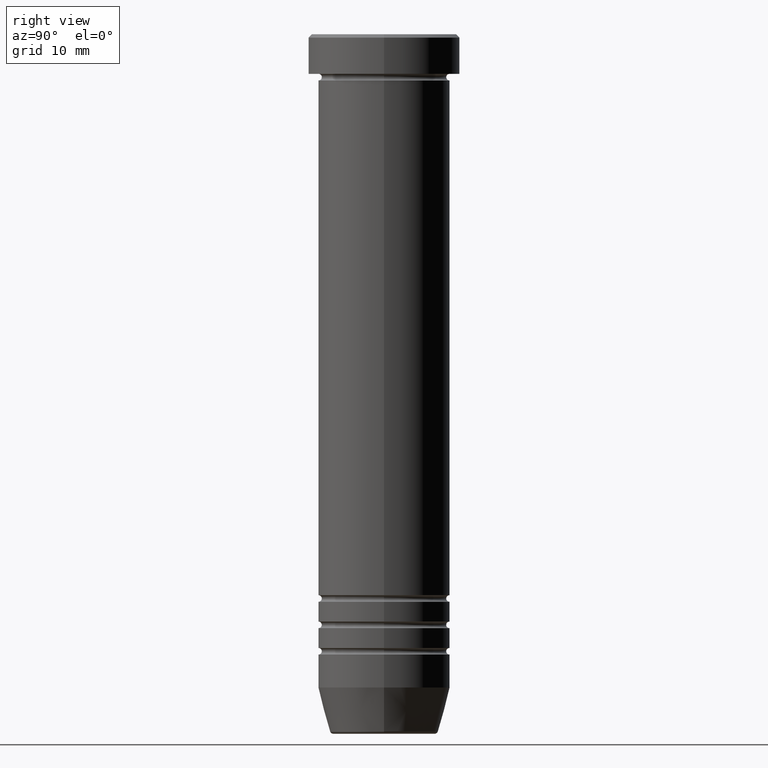
[diagram: clean part render]
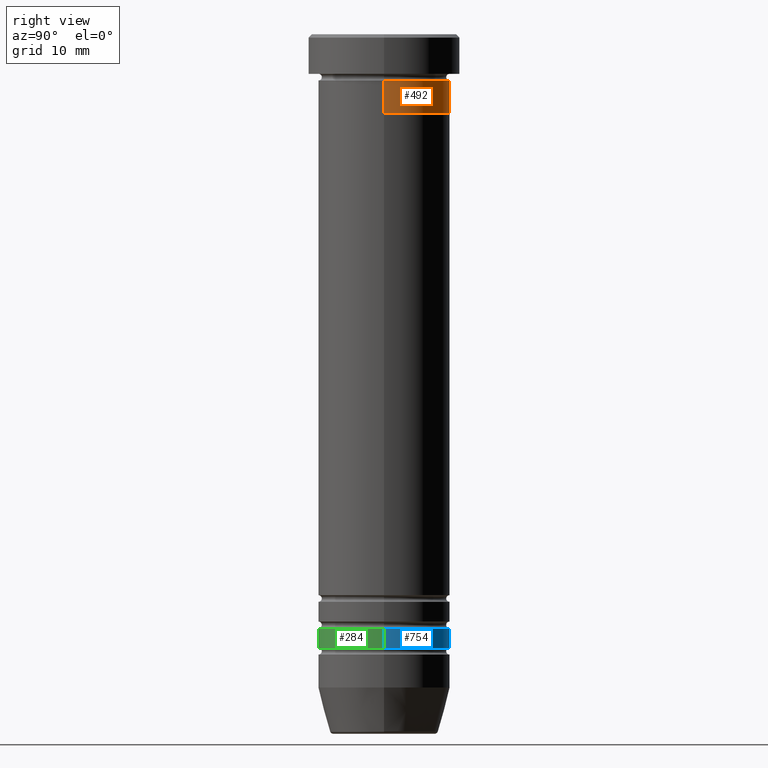
[diagram: same view with three faces highlighted in distinct colors, each labeled with its STEP entity id]
A machine part, right view with three faces highlighted in distinct colors.
Their STEP definitions:

[orange] entity #492 — the highlighted cylindrical surface (partial cylindrical patch) has radius 10 mm, axis along (-0, -0, 1).
#11 = EDGE_LOOP ( 'NONE', ( #659, #537, #506, #1034 ) ) ;
#47 = VECTOR ( 'NONE', #702, 1000.000000000000000 ) ;
#171 = CYLINDRICAL_SURFACE ( 'NONE', #688, 10.00000000000000000 ) ;
#188 = EDGE_CURVE ( 'NONE', #369, #266, #746, .T. ) ;
#222 = CARTESIAN_POINT ( 'NONE',  ( 0.000000000000000000, 0.000000000000000000, -12.00000000000000000 ) ) ;
#266 = VERTEX_POINT ( 'NONE', #864 ) ;
#306 = AXIS2_PLACEMENT_3D ( 'NONE', #222, #824, #1107 ) ;
#307 = AXIS2_PLACEMENT_3D ( 'NONE', #1066, #952, #430 ) ;
#308 = VECTOR ( 'NONE', #314, 1000.000000000000000 ) ;
#314 = DIRECTION ( 'NONE',  ( -0.000000000000000000, -0.000000000000000000, 1.000000000000000000 ) ) ;
#333 = DIRECTION ( 'NONE',  ( 1.000000000000000000, 0.000000000000000000, 0.000000000000000000 ) ) ;
#369 = VERTEX_POINT ( 'NONE', #889 ) ;
#418 = CIRCLE ( 'NONE', #307, 10.00000000000000000 ) ;
#430 = DIRECTION ( 'NONE',  ( 1.000000000000000000, 0.000000000000000000, 0.000000000000000000 ) ) ;
#492 = ADVANCED_FACE ( 'NONE', ( #771 ), #171, .T. ) ;
#506 = ORIENTED_EDGE ( 'NONE', *, *, #976, .F. ) ;
#537 = ORIENTED_EDGE ( 'NONE', *, *, #832, .T. ) ;
#613 = CARTESIAN_POINT ( 'NONE',  ( -10.00000000000000000, 1.224646799147353256E-15, 0.000000000000000000 ) ) ;
#659 = ORIENTED_EDGE ( 'NONE', *, *, #903, .T. ) ;
#684 = CARTESIAN_POINT ( 'NONE',  ( -10.00000000000000000, 1.224646799147353256E-15, -6.999999999999999112 ) ) ;
#688 = AXIS2_PLACEMENT_3D ( 'NONE', #1118, #760, #333 ) ;
#702 = DIRECTION ( 'NONE',  ( -0.000000000000000000, -0.000000000000000000, 1.000000000000000000 ) ) ;
#746 = LINE ( 'NONE', #1021, #308 ) ;
#760 = DIRECTION ( 'NONE',  ( -0.000000000000000000, -0.000000000000000000, 1.000000000000000000 ) ) ;
#771 = FACE_OUTER_BOUND ( 'NONE', #11, .T. ) ;
#787 = LINE ( 'NONE', #613, #47 ) ;
#800 = CIRCLE ( 'NONE', #306, 10.00000000000000000 ) ;
#824 = DIRECTION ( 'NONE',  ( -0.000000000000000000, -0.000000000000000000, 1.000000000000000000 ) ) ;
#832 = EDGE_CURVE ( 'NONE', #981, #1023, #787, .T. ) ;
#864 = CARTESIAN_POINT ( 'NONE',  ( 10.00000000000000000, 0.000000000000000000, -6.999999999999999112 ) ) ;
#889 = CARTESIAN_POINT ( 'NONE',  ( 10.00000000000000000, 0.000000000000000000, -12.00000000000000000 ) ) ;
#903 = EDGE_CURVE ( 'NONE', #369, #981, #800, .T. ) ;
#952 = DIRECTION ( 'NONE',  ( -0.000000000000000000, -0.000000000000000000, 1.000000000000000000 ) ) ;
#976 = EDGE_CURVE ( 'NONE', #266, #1023, #418, .T. ) ;
#981 = VERTEX_POINT ( 'NONE', #1050 ) ;
#1021 = CARTESIAN_POINT ( 'NONE',  ( 10.00000000000000000, 0.000000000000000000, 0.000000000000000000 ) ) ;
#1023 = VERTEX_POINT ( 'NONE', #684 ) ;
#1034 = ORIENTED_EDGE ( 'NONE', *, *, #188, .F. ) ;
#1050 = CARTESIAN_POINT ( 'NONE',  ( -10.00000000000000000, 1.224646799147353256E-15, -12.00000000000000000 ) ) ;
#1066 = CARTESIAN_POINT ( 'NONE',  ( 0.000000000000000000, 0.000000000000000000, -6.999999999999999112 ) ) ;
#1107 = DIRECTION ( 'NONE',  ( 1.000000000000000000, 0.000000000000000000, 0.000000000000000000 ) ) ;
#1118 = CARTESIAN_POINT ( 'NONE',  ( 0.000000000000000000, 0.000000000000000000, 0.000000000000000000 ) ) ;

[blue] entity #754 — the highlighted cylindrical surface (partial cylindrical patch) has radius 10 mm, axis along (-0, -0, 1).
#7 = ORIENTED_EDGE ( 'NONE', *, *, #283, .F. ) ;
#10 = CARTESIAN_POINT ( 'NONE',  ( -9.999999999999992895, 1.224646799147352665E-15, -92.99999999999998579 ) ) ;
#69 = DIRECTION ( 'NONE',  ( -0.000000000000000000, -0.000000000000000000, 1.000000000000000000 ) ) ;
#74 = LINE ( 'NONE', #90, #273 ) ;
#90 = CARTESIAN_POINT ( 'NONE',  ( -9.999999999999996447, 1.224646799147352862E-15, 0.000000000000000000 ) ) ;
#104 = VECTOR ( 'NONE', #583, 1000.000000000000000 ) ;
#113 = CARTESIAN_POINT ( 'NONE',  ( 0.000000000000000000, 0.000000000000000000, -90.00000000000000000 ) ) ;
#123 = CIRCLE ( 'NONE', #416, 10.00000000000000000 ) ;
#133 = EDGE_LOOP ( 'NONE', ( #363, #1002, #7, #768 ) ) ;
#140 = CIRCLE ( 'NONE', #305, 9.999999999999992895 ) ;
#209 = AXIS2_PLACEMENT_3D ( 'NONE', #425, #362, #1052 ) ;
#244 = LINE ( 'NONE', #1124, #104 ) ;
#248 = CARTESIAN_POINT ( 'NONE',  ( 10.00000000000000000, 0.000000000000000000, -90.00000000000000000 ) ) ;
#273 = VECTOR ( 'NONE', #69, 1000.000000000000000 ) ;
#283 = EDGE_CURVE ( 'NONE', #788, #490, #123, .T. ) ;
#293 = DIRECTION ( 'NONE',  ( 1.000000000000000000, 0.000000000000000000, 0.000000000000000000 ) ) ;
#305 = AXIS2_PLACEMENT_3D ( 'NONE', #713, #1082, #449 ) ;
#362 = DIRECTION ( 'NONE',  ( -0.000000000000000000, -0.000000000000000000, 1.000000000000000000 ) ) ;
#363 = ORIENTED_EDGE ( 'NONE', *, *, #511, .T. ) ;
#391 = EDGE_CURVE ( 'NONE', #696, #788, #244, .T. ) ;
#416 = AXIS2_PLACEMENT_3D ( 'NONE', #113, #900, #293 ) ;
#425 = CARTESIAN_POINT ( 'NONE',  ( 0.000000000000000000, 0.000000000000000000, 0.000000000000000000 ) ) ;
#447 = CARTESIAN_POINT ( 'NONE',  ( 9.999999999999992895, 0.000000000000000000, -92.99999999999998579 ) ) ;
#449 = DIRECTION ( 'NONE',  ( 1.000000000000000000, 0.000000000000000000, 0.000000000000000000 ) ) ;
#490 = VERTEX_POINT ( 'NONE', #774 ) ;
#511 = EDGE_CURVE ( 'NONE', #696, #748, #140, .T. ) ;
#583 = DIRECTION ( 'NONE',  ( -0.000000000000000000, -0.000000000000000000, 1.000000000000000000 ) ) ;
#593 = FACE_OUTER_BOUND ( 'NONE', #133, .T. ) ;
#681 = CYLINDRICAL_SURFACE ( 'NONE', #209, 9.999999999999996447 ) ;
#696 = VERTEX_POINT ( 'NONE', #447 ) ;
#713 = CARTESIAN_POINT ( 'NONE',  ( 0.000000000000000000, 0.000000000000000000, -92.99999999999998579 ) ) ;
#736 = EDGE_CURVE ( 'NONE', #748, #490, #74, .T. ) ;
#748 = VERTEX_POINT ( 'NONE', #10 ) ;
#754 = ADVANCED_FACE ( 'NONE', ( #593 ), #681, .T. ) ;
#768 = ORIENTED_EDGE ( 'NONE', *, *, #391, .F. ) ;
#774 = CARTESIAN_POINT ( 'NONE',  ( -10.00000000000000178, 1.224646799147353454E-15, -90.00000000000000000 ) ) ;
#788 = VERTEX_POINT ( 'NONE', #248 ) ;
#900 = DIRECTION ( 'NONE',  ( -0.000000000000000000, -0.000000000000000000, 1.000000000000000000 ) ) ;
#1002 = ORIENTED_EDGE ( 'NONE', *, *, #736, .T. ) ;
#1052 = DIRECTION ( 'NONE',  ( 1.000000000000000000, 0.000000000000000000, 0.000000000000000000 ) ) ;
#1082 = DIRECTION ( 'NONE',  ( -0.000000000000000000, -0.000000000000000000, 1.000000000000000000 ) ) ;
#1124 = CARTESIAN_POINT ( 'NONE',  ( 9.999999999999996447, 0.000000000000000000, 0.000000000000000000 ) ) ;

[green] entity #284 — the highlighted cylindrical surface (partial cylindrical patch) has radius 10 mm, axis along (-0, -0, 1).
#1 = CIRCLE ( 'NONE', #1128, 10.00000000000000000 ) ;
#10 = CARTESIAN_POINT ( 'NONE',  ( -9.999999999999992895, 1.224646799147352665E-15, -92.99999999999998579 ) ) ;
#35 = CARTESIAN_POINT ( 'NONE',  ( 0.000000000000000000, 0.000000000000000000, 0.000000000000000000 ) ) ;
#69 = DIRECTION ( 'NONE',  ( -0.000000000000000000, -0.000000000000000000, 1.000000000000000000 ) ) ;
#74 = LINE ( 'NONE', #90, #273 ) ;
#90 = CARTESIAN_POINT ( 'NONE',  ( -9.999999999999996447, 1.224646799147352862E-15, 0.000000000000000000 ) ) ;
#104 = VECTOR ( 'NONE', #583, 1000.000000000000000 ) ;
#142 = AXIS2_PLACEMENT_3D ( 'NONE', #829, #151, #639 ) ;
#151 = DIRECTION ( 'NONE',  ( -0.000000000000000000, -0.000000000000000000, 1.000000000000000000 ) ) ;
#199 = DIRECTION ( 'NONE',  ( -0.000000000000000000, -0.000000000000000000, 1.000000000000000000 ) ) ;
#244 = LINE ( 'NONE', #1124, #104 ) ;
#248 = CARTESIAN_POINT ( 'NONE',  ( 10.00000000000000000, 0.000000000000000000, -90.00000000000000000 ) ) ;
#273 = VECTOR ( 'NONE', #69, 1000.000000000000000 ) ;
#284 = ADVANCED_FACE ( 'NONE', ( #454 ), #1032, .T. ) ;
#330 = ORIENTED_EDGE ( 'NONE', *, *, #640, .T. ) ;
#391 = EDGE_CURVE ( 'NONE', #696, #788, #244, .T. ) ;
#447 = CARTESIAN_POINT ( 'NONE',  ( 9.999999999999992895, 0.000000000000000000, -92.99999999999998579 ) ) ;
#454 = FACE_OUTER_BOUND ( 'NONE', #1068, .T. ) ;
#466 = DIRECTION ( 'NONE',  ( 1.000000000000000000, 0.000000000000000000, 0.000000000000000000 ) ) ;
#490 = VERTEX_POINT ( 'NONE', #774 ) ;
#518 = ORIENTED_EDGE ( 'NONE', *, *, #919, .F. ) ;
#554 = ORIENTED_EDGE ( 'NONE', *, *, #736, .F. ) ;
#570 = DIRECTION ( 'NONE',  ( -0.000000000000000000, -0.000000000000000000, 1.000000000000000000 ) ) ;
#583 = DIRECTION ( 'NONE',  ( -0.000000000000000000, -0.000000000000000000, 1.000000000000000000 ) ) ;
#639 = DIRECTION ( 'NONE',  ( 1.000000000000000000, 0.000000000000000000, 0.000000000000000000 ) ) ;
#640 = EDGE_CURVE ( 'NONE', #748, #696, #1075, .T. ) ;
#696 = VERTEX_POINT ( 'NONE', #447 ) ;
#733 = CARTESIAN_POINT ( 'NONE',  ( 0.000000000000000000, 0.000000000000000000, -90.00000000000000000 ) ) ;
#736 = EDGE_CURVE ( 'NONE', #748, #490, #74, .T. ) ;
#748 = VERTEX_POINT ( 'NONE', #10 ) ;
#764 = AXIS2_PLACEMENT_3D ( 'NONE', #35, #199, #466 ) ;
#774 = CARTESIAN_POINT ( 'NONE',  ( -10.00000000000000178, 1.224646799147353454E-15, -90.00000000000000000 ) ) ;
#788 = VERTEX_POINT ( 'NONE', #248 ) ;
#829 = CARTESIAN_POINT ( 'NONE',  ( 0.000000000000000000, 0.000000000000000000, -92.99999999999998579 ) ) ;
#919 = EDGE_CURVE ( 'NONE', #490, #788, #1, .T. ) ;
#1032 = CYLINDRICAL_SURFACE ( 'NONE', #764, 9.999999999999996447 ) ;
#1068 = EDGE_LOOP ( 'NONE', ( #554, #330, #1119, #518 ) ) ;
#1075 = CIRCLE ( 'NONE', #142, 9.999999999999992895 ) ;
#1099 = DIRECTION ( 'NONE',  ( 1.000000000000000000, 0.000000000000000000, 0.000000000000000000 ) ) ;
#1119 = ORIENTED_EDGE ( 'NONE', *, *, #391, .T. ) ;
#1124 = CARTESIAN_POINT ( 'NONE',  ( 9.999999999999996447, 0.000000000000000000, 0.000000000000000000 ) ) ;
#1128 = AXIS2_PLACEMENT_3D ( 'NONE', #733, #570, #1099 ) ;